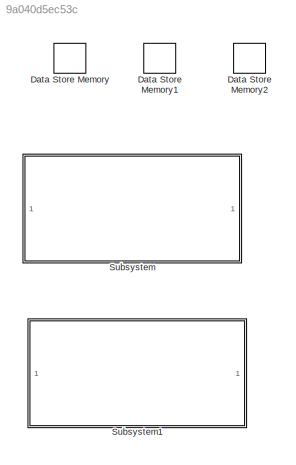
MODEL slx_9a040d5ec53c
KIND model
CONFIG AbsTol = auto
CONFIG EnableMultiTasking = off
CONFIG FixedStep = auto
CONFIG MaxStep = auto
CONFIG MinStep = auto
CONFIG RelTol = 1e-3
CONFIG SampleTimeConstraint = Unconstrained
CONFIG Solver = VariableStepAuto
CONFIG SolverName = VariableStepAuto
CONFIG StartTime = 0.0
CONFIG StopTime = 10.0
BLOCK [DataStoreMemory] Data Store Memory
  ShowAdditionalParam = off
  WriteAfterWriteMsg = warning
BLOCK [DataStoreMemory] Data Store Memory1
  DataStoreName = B
  ShowAdditionalParam = off
  WriteAfterWriteMsg = warning
BLOCK [DataStoreMemory] Data Store Memory2
  DataStoreName = Result
  ShowAdditionalParam = off
  WriteAfterWriteMsg = warning
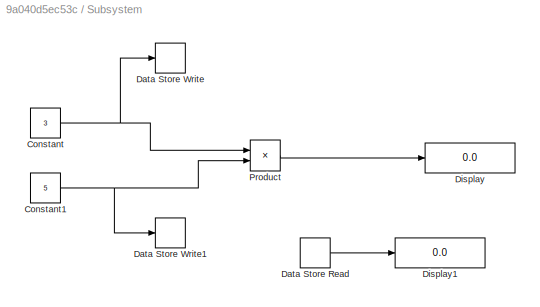
BLOCK [SubSystem] Subsystem
  Ports = []
BLOCK [Constant] Subsystem/Constant
  Value = 3
BLOCK [Constant] Subsystem/Constant1
  Value = 5
BLOCK [DataStoreRead] Subsystem/Data Store Read
  DataStoreName = Result
  Ports = [0, 1]
BLOCK [DataStoreWrite] Subsystem/Data Store Write
  Ports = [1]
BLOCK [DataStoreWrite] Subsystem/Data Store Write1
  DataStoreName = B
  Ports = [1]
BLOCK [Display] Subsystem/Display
  Decimation = 1
  Ports = [1]
BLOCK [Display] Subsystem/Display1
  Decimation = 1
  Ports = [1]
BLOCK [Product] Subsystem/Product
  Ports = [2, 1]
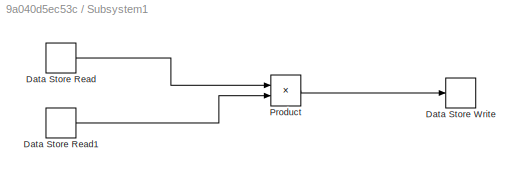
BLOCK [SubSystem] Subsystem1
  Ports = []
BLOCK [DataStoreRead] Subsystem1/Data Store Read
  Ports = [0, 1]
BLOCK [DataStoreRead] Subsystem1/Data Store Read1
  DataStoreName = B
  Ports = [0, 1]
BLOCK [DataStoreWrite] Subsystem1/Data Store Write
  DataStoreName = Result
  Ports = [1]
BLOCK [Product] Subsystem1/Product
  Ports = [2, 1]
NET Subsystem/Constant1:1 -> Subsystem/Data Store Write1:1, Subsystem/Product:2
NET Subsystem/Constant:1 -> Subsystem/Data Store Write:1, Subsystem/Product:1
LINE Subsystem/Data Store Read:1 -> Subsystem/Display1:1
LINE Subsystem/Product:1 -> Subsystem/Display:1
LINE Subsystem1/Data Store Read1:1 -> Subsystem1/Product:2
LINE Subsystem1/Data Store Read:1 -> Subsystem1/Product:1
LINE Subsystem1/Product:1 -> Subsystem1/Data Store Write:1
note: NET lines group one-source signal fan-out (src -> all destinations, sorted); 1:1 wires keep LINE
